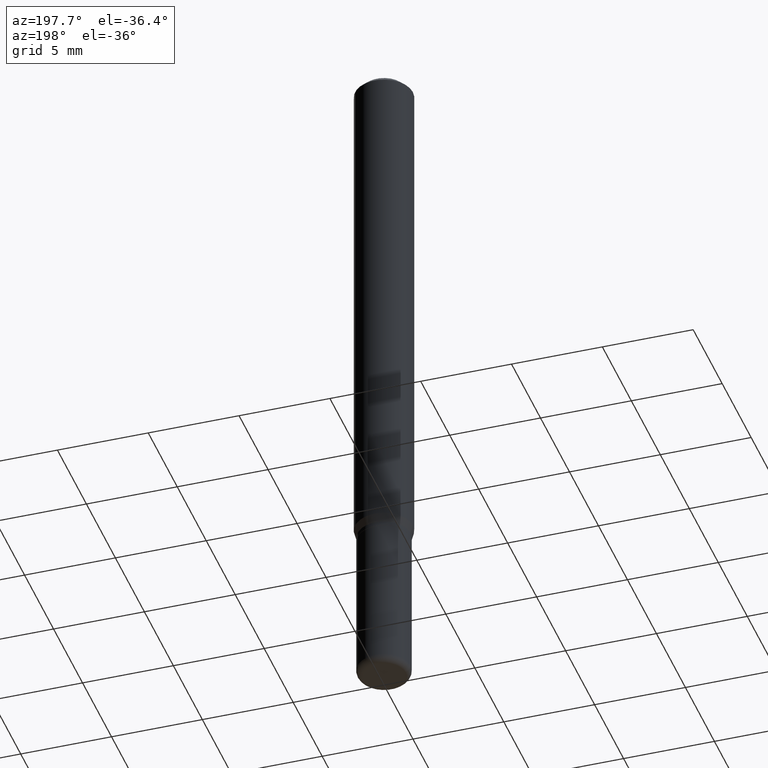
[diagram: clean part render]
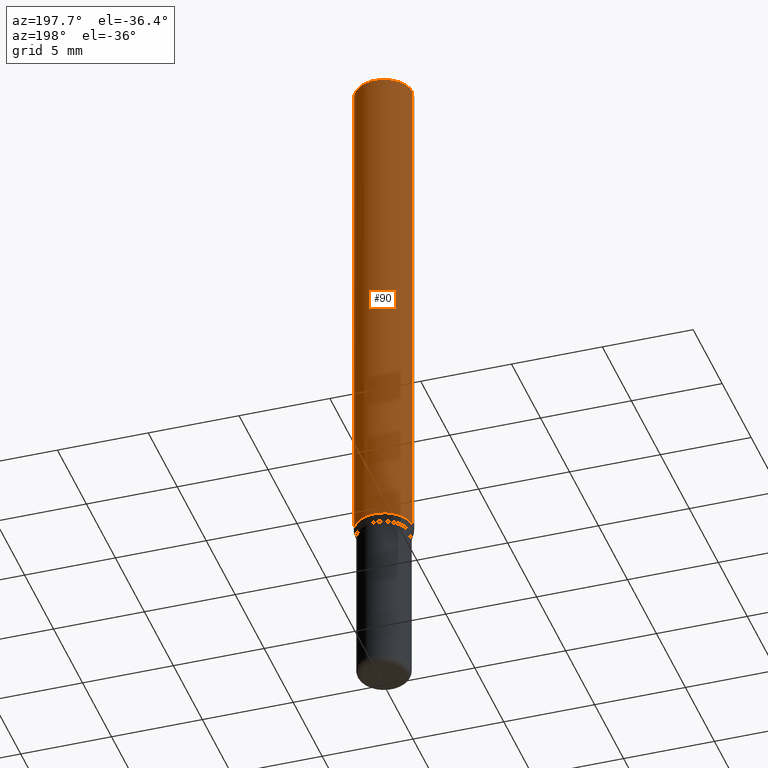
[diagram: same view with one face highlighted and labeled with its STEP entity id]
A machine part, auxiliary view. The second image highlights one B-rep face of the part: STEP entity #90.
In plain terms, the highlighted cylindrical surface (edge-blend (fillet) strip) has radius 1.5875 mm, axis along (-0, 0, 1).
Its self-contained STEP definition (entity closure, byte-faithful):
#20 = AXIS2_PLACEMENT_3D ( 'NONE', #57, #385, #288 ) ;
#35 = DIRECTION ( 'NONE',  ( -2.445468806185136877E-29, 3.491481338843145188E-15, 1.000000000000000000 ) ) ;
#36 = ORIENTED_EDGE ( 'NONE', *, *, #506, .F. ) ;
#41 = LINE ( 'NONE', #518, #54 ) ;
#53 = VERTEX_POINT ( 'NONE', #120 ) ;
#54 = VECTOR ( 'NONE', #336, 39.37007874015748143 ) ;
#56 = DIRECTION ( 'NONE',  ( 1.000000000000000000, -6.982962677686266711E-15, 0.000000000000000000 ) ) ;
#57 = CARTESIAN_POINT ( 'NONE',  ( 2.754428713916943180E-29, -3.932594204224195830E-15, -1.126339745962155803 ) ) ;
#69 = AXIS2_PLACEMENT_3D ( 'NONE', #299, #458, #102 ) ;
#90 = ADVANCED_FACE ( 'NONE', ( #297 ), #143, .T. ) ;
#102 = DIRECTION ( 'NONE',  ( 1.000000000000000000, -6.982962677686266711E-15, 4.876176775795935793E-29 ) ) ;
#120 = CARTESIAN_POINT ( 'NONE',  ( -0.06250000000000000000, -1.548394002303358444E-15, -0.01499999999999970281 ) ) ;
#121 = CARTESIAN_POINT ( 'NONE',  ( -0.06250000000000000000, -3.488504994374133608E-15, -1.126339745962155803 ) ) ;
#140 = VECTOR ( 'NONE', #35, 39.37007874015748143 ) ;
#143 = CYLINDRICAL_SURFACE ( 'NONE', #69, 0.06250000000000000000 ) ;
#180 = ORIENTED_EDGE ( 'NONE', *, *, #379, .F. ) ;
#225 = ORIENTED_EDGE ( 'NONE', *, *, #517, .T. ) ;
#231 = CIRCLE ( 'NONE', #20, 0.06250000000000000000 ) ;
#261 = ORIENTED_EDGE ( 'NONE', *, *, #452, .T. ) ;
#267 = AXIS2_PLACEMENT_3D ( 'NONE', #416, #418, #56 ) ;
#281 = CARTESIAN_POINT ( 'NONE',  ( -0.06250000000000000000, 4.440892098500626162E-16, -3.074334431409316114E-30 ) ) ;
#288 = DIRECTION ( 'NONE',  ( 1.000000000000000000, -6.982962677686262766E-15, 0.000000000000000000 ) ) ;
#297 = FACE_OUTER_BOUND ( 'NONE', #377, .T. ) ;
#299 = CARTESIAN_POINT ( 'NONE',  ( 0.000000000000000000, 0.000000000000000000, 0.000000000000000000 ) ) ;
#324 = LINE ( 'NONE', #281, #140 ) ;
#336 = DIRECTION ( 'NONE',  ( -2.445468806185136877E-29, 3.491481338843145188E-15, 1.000000000000000000 ) ) ;
#343 = VERTEX_POINT ( 'NONE', #363 ) ;
#349 = CIRCLE ( 'NONE', #267, 0.06250000000000000000 ) ;
#363 = CARTESIAN_POINT ( 'NONE',  ( 0.06250000000000000000, -4.888073874380378612E-16, -0.01499999999999970281 ) ) ;
#365 = VERTEX_POINT ( 'NONE', #121 ) ;
#377 = EDGE_LOOP ( 'NONE', ( #225, #261, #36, #180 ) ) ;
#379 = EDGE_CURVE ( 'NONE', #496, #343, #41, .T. ) ;
#385 = DIRECTION ( 'NONE',  ( -2.445468806185136597E-29, 3.491481338843145583E-15, 1.000000000000000000 ) ) ;
#416 = CARTESIAN_POINT ( 'NONE',  ( 3.668203209277632395E-31, -5.237222008264614861E-17, -0.01499999999999970281 ) ) ;
#418 = DIRECTION ( 'NONE',  ( -2.445468806185136597E-29, 3.491481338843145583E-15, 1.000000000000000000 ) ) ;
#451 = CARTESIAN_POINT ( 'NONE',  ( 0.06250000000000000000, -4.369029371579587499E-15, -1.126339745962155803 ) ) ;
#452 = EDGE_CURVE ( 'NONE', #365, #53, #324, .T. ) ;
#458 = DIRECTION ( 'NONE',  ( -2.445468806185136597E-29, 3.491481338843145583E-15, 1.000000000000000000 ) ) ;
#496 = VERTEX_POINT ( 'NONE', #451 ) ;
#506 = EDGE_CURVE ( 'NONE', #343, #53, #349, .T. ) ;
#517 = EDGE_CURVE ( 'NONE', #496, #365, #231, .T. ) ;
#518 = CARTESIAN_POINT ( 'NONE',  ( 0.06250000000000000000, -4.364351673553916694E-16, 3.047610484872459871E-30 ) ) ;